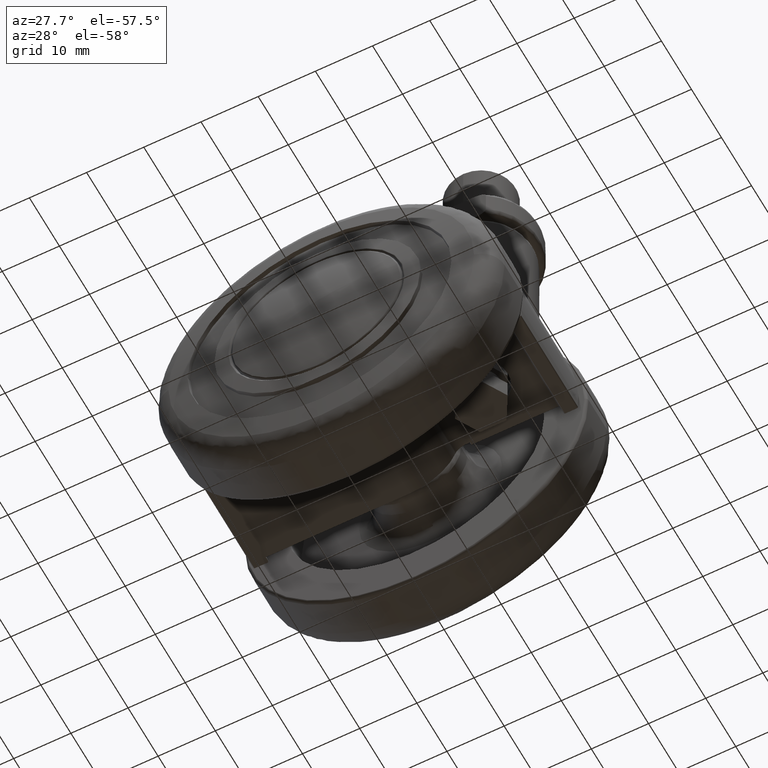
[diagram: clean part render]
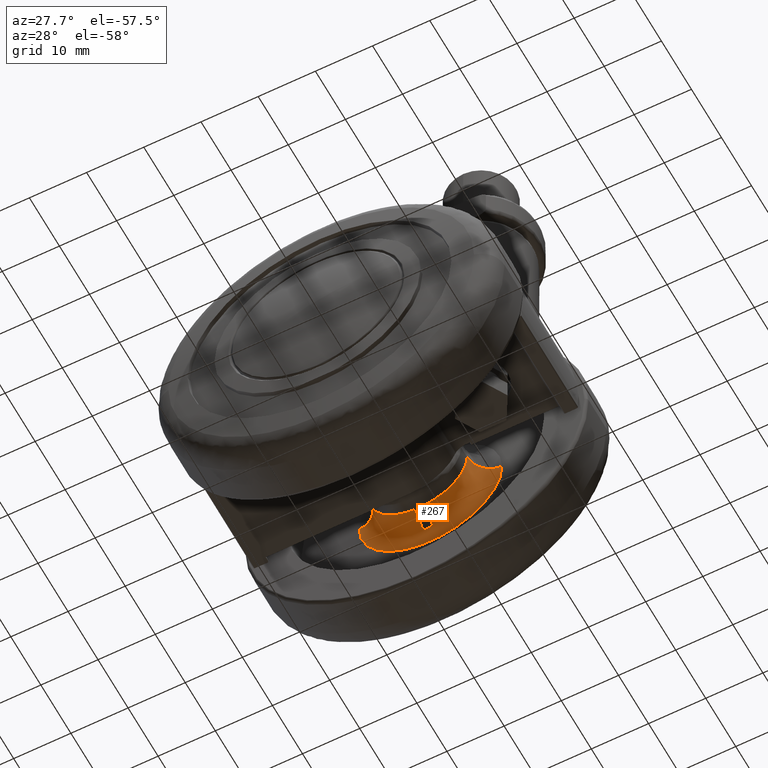
[diagram: same view with one face highlighted and labeled with its STEP entity id]
A machine part, auxiliary view. The second image highlights one B-rep face of the part: STEP entity #267.
In plain terms, the highlighted face is a freeform B-spline surface patch.
Its self-contained STEP definition (entity closure, byte-faithful):
#267=ADVANCED_FACE('',(#1412),#1411,.F.);
#1411=( BOUNDED_SURFACE() B_SPLINE_SURFACE( 2,2,((#4099,#4100,#4101,#4102,#4103),(#4104,#4105,#4106,#4107,#4108),(#4109,#4110,#4111,#4112,#4113),(#4114,#4115,#4116,#4117,#4118),(#4119,#4120,#4121,#4122,#4123)), .UNSPECIFIED.,.F.,.F.,.F.) B_SPLINE_SURFACE_WITH_KNOTS((3,2,3),(3,2,3),(1.57079632680E+00,2.09441127550E+00,3.14164117290E+00),(0.00000000000E+00,1.57079632679E+00,3.14159265359E+00), .UNSPECIFIED. ) GEOMETRIC_REPRESENTATION_ITEM() RATIONAL_B_SPLINE_SURFACE(((9.33008658559E-01,6.59736749373E-01,9.33008658559E-01,6.59736749373E-01,9.33008658559E-01),(9.33008658559E-01,6.59736749373E-01,9.33008658559E-01,6.59736749373E-01,9.33008658559E-01),(1.00000000000E+00,7.07106781187E-01,1.00000000000E+00,7.07106781187E-01,1.00000000000E+00),(8.66017317119E-01,6.12366717560E-01,8.66017317119E-01,6.12366717560E-01,8.66017317119E-01),(1.00000000000E+00,7.07106781187E-01,1.00000000000E+00,7.07106781187E-01,1.00000000000E+00))) REPRESENTATION_ITEM('') SURFACE() );
#1412=FACE_OUTER_BOUND('',#4124,.T.);
#4099=CARTESIAN_POINT('',(-1.25000000000E+01,1.53075794228E-15,7.00000000000E+00));
#4100=CARTESIAN_POINT('',(-1.25000000000E+01,1.25000000000E+01,7.00000000000E+00));
#4101=CARTESIAN_POINT('',(1.53075794228E-15,1.25000000000E+01,7.00000000000E+00));
#4102=CARTESIAN_POINT('',(1.25000000000E+01,1.25000000000E+01,7.00000000000E+00));
#4103=CARTESIAN_POINT('',(1.25000000000E+01,-1.53075794228E-15,7.00000000000E+00));
#4104=CARTESIAN_POINT('',(-1.14281685616E+01,1.39950078331E-15,7.00000000000E+00));
#4105=CARTESIAN_POINT('',(-1.14281685616E+01,1.14281685616E+01,7.00000000000E+00));
#4106=CARTESIAN_POINT('',(1.39950078331E-15,1.14281685616E+01,7.00000000000E+00));
#4107=CARTESIAN_POINT('',(1.14281685616E+01,1.14281685616E+01,7.00000000000E+00));
#4108=CARTESIAN_POINT('',(1.14281685616E+01,-1.39950078331E-15,7.00000000000E+00));
#4109=CARTESIAN_POINT('',(-1.04999439750E+01,1.28582981065E-15,6.46406926847E+00));
#4110=CARTESIAN_POINT('',(-1.04999439750E+01,1.04999439750E+01,6.46406926847E+00));
#4111=CARTESIAN_POINT('',(1.28582981065E-15,1.04999439750E+01,6.46406926847E+00));
#4112=CARTESIAN_POINT('',(1.04999439750E+01,1.04999439750E+01,6.46406926847E+00));
#4113=CARTESIAN_POINT('',(1.04999439750E+01,-1.28582981065E-15,6.46406926847E+00));
#4114=CARTESIAN_POINT('',(-8.49988794996E+00,1.04090167903E-15,5.30929325415E+00));
#4115=CARTESIAN_POINT('',(-8.49988794996E+00,8.49988794996E+00,5.30929325415E+00));
#4116=CARTESIAN_POINT('',(1.04090167903E-15,8.49988794996E+00,5.30929325415E+00));
#4117=CARTESIAN_POINT('',(8.49988794996E+00,8.49988794996E+00,5.30929325415E+00));
#4118=CARTESIAN_POINT('',(8.49988794996E+00,-1.04090167903E-15,5.30929325415E+00));
#4119=CARTESIAN_POINT('',(-8.50000000471E+00,1.04091540133E-15,2.99980592274E+00));
#4120=CARTESIAN_POINT('',(-8.50000000471E+00,8.50000000471E+00,2.99980592274E+00));
#4121=CARTESIAN_POINT('',(1.04091540133E-15,8.50000000471E+00,2.99980592274E+00));
#4122=CARTESIAN_POINT('',(8.50000000471E+00,8.50000000471E+00,2.99980592274E+00));
#4123=CARTESIAN_POINT('',(8.50000000471E+00,-1.04091540133E-15,2.99980592274E+00));
#4124=EDGE_LOOP('',(#5021,#5022,#5023,#5024,#5025,#5026,#5027,#5028));
#5021=ORIENTED_EDGE('',*,*,#5468,.F.);
#5022=ORIENTED_EDGE('',*,*,#5453,.F.);
#5023=ORIENTED_EDGE('',*,*,#5450,.F.);
#5024=ORIENTED_EDGE('',*,*,#5452,.F.);
#5025=ORIENTED_EDGE('',*,*,#5467,.F.);
#5026=ORIENTED_EDGE('',*,*,#5492,.F.);
#5027=ORIENTED_EDGE('',*,*,#5431,.F.);
#5028=ORIENTED_EDGE('',*,*,#5493,.T.);
#5431=EDGE_CURVE('',#6988,#6989,#6990,.T.);
#5450=EDGE_CURVE('',#7114,#7115,#7122,.T.);
#5452=EDGE_CURVE('',#7134,#7114,#7135,.T.);
#5453=EDGE_CURVE('',#7115,#7141,#7142,.T.);
#5467=EDGE_CURVE('',#7224,#7134,#7231,.T.);
#5468=EDGE_CURVE('',#7141,#7237,#7238,.T.);
#5492=EDGE_CURVE('',#6989,#7224,#7386,.T.);
#5493=EDGE_CURVE('',#6988,#7237,#7392,.T.);
#6988=VERTEX_POINT('',#9211);
#6989=VERTEX_POINT('',#9212);
#6990=CIRCLE('',#9216,1.25000000000E+01);
#7114=VERTEX_POINT('',#9301);
#7115=VERTEX_POINT('',#9302);
#7122=CIRCLE('',#9316,1.00000000000E+01);
#7134=VERTEX_POINT('',#9321);
#7135=CIRCLE('',#9325,4.00000000000E+00);
#7141=VERTEX_POINT('',#9326);
#7142=CIRCLE('',#9330,4.00000000000E+00);
#7224=VERTEX_POINT('',#9375);
#7231=CIRCLE('',#9381,8.50000000000E+00);
#7237=VERTEX_POINT('',#9382);
#7238=CIRCLE('',#9386,8.50000000000E+00);
#7386=(BOUNDED_CURVE() B_SPLINE_CURVE(2,(#9462,#9463,#9464,#9465,#9466),.UNSPECIFIED.,.F.,.F.) B_SPLINE_CURVE_WITH_KNOTS((3,2,3),(1.57079632679E+00,2.09441127550E+00,3.14159037102E+00),.UNSPECIFIED.) CURVE() GEOMETRIC_REPRESENTATION_ITEM() RATIONAL_B_SPLINE_CURVE((9.33008658559E-01,9.33008658559E-01,1.00000000000E+00,8.66023816717E-01,9.99987001435E-01)) REPRESENTATION_ITEM('') );
#7392=(BOUNDED_CURVE() B_SPLINE_CURVE(2,(#9467,#9468,#9469,#9470,#9471),.UNSPECIFIED.,.F.,.F.) B_SPLINE_CURVE_WITH_KNOTS((3,2,3),(1.57079632679E+00,2.09441127550E+00,3.14164117290E+00),.UNSPECIFIED.) CURVE() GEOMETRIC_REPRESENTATION_ITEM() RATIONAL_B_SPLINE_CURVE((9.33008658559E-01,9.33008658559E-01,1.00000000000E+00,8.66017317119E-01,1.00000000000E+00)) REPRESENTATION_ITEM('') );
#9211=CARTESIAN_POINT('',(1.25000000000E+01,0.00000000000E+00,7.00000000000E+00));
#9212=CARTESIAN_POINT('',(-1.25000000000E+01,0.00000000000E+00,7.00000000000E+00));
#9213=CARTESIAN_POINT('',(0.00000000000E+00,0.00000000000E+00,7.00000000000E+00));
#9214=DIRECTION('',(0.00000000000E+00,0.00000000000E+00,1.00000000000E+00));
#9215=DIRECTION('',(1.00000000000E+00,-1.22460635382E-16,0.00000000000E+00));
#9216=AXIS2_PLACEMENT_3D('',#9213,#9214,#9215);
#9301=CARTESIAN_POINT('',(-9.06550555697E-01,9.95882352941E+00,6.12249899920E+00));
#9302=CARTESIAN_POINT('',(9.06550555697E-01,9.95882352941E+00,6.12249899920E+00));
#9313=CARTESIAN_POINT('',(0.00000000000E+00,0.00000000000E+00,6.12249899920E+00));
#9314=DIRECTION('',(-0.00000000000E+00,0.00000000000E+00,-1.00000000000E+00));
#9315=DIRECTION('',(1.00000000000E+00,-0.00000000000E+00,-0.00000000000E+00));
#9316=AXIS2_PLACEMENT_3D('',#9313,#9314,#9315);
#9321=CARTESIAN_POINT('',(-7.70567972342E-01,8.46500000000E+00,3.00000000000E+00));
#9322=CARTESIAN_POINT('',(-1.13318819462E+00,1.24485294118E+01,3.00000000000E+00));
#9323=DIRECTION('',(-9.95882352941E-01,-9.06550555697E-02,5.39868905299E-17));
#9324=DIRECTION('',(-9.06550555697E-02,9.95882352941E-01,-2.68673971959E-14));
#9325=AXIS2_PLACEMENT_3D('',#9322,#9323,#9324);
#9326=CARTESIAN_POINT('',(7.70567972342E-01,8.46500000000E+00,3.00000000000E+00));
#9327=CARTESIAN_POINT('',(1.13318819462E+00,1.24485294118E+01,3.00000000000E+00));
#9328=DIRECTION('',(9.95882352941E-01,-9.06550555697E-02,0.00000000000E+00));
#9329=DIRECTION('',(-0.00000000000E+00,-0.00000000000E+00,-1.00000000000E+00));
#9330=AXIS2_PLACEMENT_3D('',#9327,#9328,#9329);
#9375=CARTESIAN_POINT('',(-8.50000000000E+00,2.68219846214E-07,3.00000000000E+00));
#9378=CARTESIAN_POINT('',(0.00000000000E+00,0.00000000000E+00,3.00000000000E+00));
#9379=DIRECTION('',(0.00000000000E+00,0.00000000000E+00,-1.00000000000E+00));
#9380=DIRECTION('',(1.00000000000E+00,-1.22464679915E-16,-0.00000000000E+00));
#9381=AXIS2_PLACEMENT_3D('',#9378,#9379,#9380);
#9382=CARTESIAN_POINT('',(8.49999863885E+00,4.81035715597E-03,3.00000000000E+00));
#9383=CARTESIAN_POINT('',(0.00000000000E+00,0.00000000000E+00,3.00000000000E+00));
#9384=DIRECTION('',(0.00000000000E+00,0.00000000000E+00,-1.00000000000E+00));
#9385=DIRECTION('',(-9.06550555697E-02,-9.95882352941E-01,-0.00000000000E+00));
#9386=AXIS2_PLACEMENT_3D('',#9383,#9384,#9385);
#9462=CARTESIAN_POINT('',(-1.25000000000E+01,1.53075794228E-15,7.00000000000E+00));
#9463=CARTESIAN_POINT('',(-1.14281685616E+01,1.39950078331E-15,7.00000000000E+00));
#9464=CARTESIAN_POINT('',(-1.04999439750E+01,1.28582981065E-15,6.46406926847E+00));
#9465=CARTESIAN_POINT('',(-8.49999998404E+00,1.04091539879E-15,5.30935793947E+00));
#9466=CARTESIAN_POINT('',(-8.50000000000E+00,1.04091540075E-15,2.99999997236E+00));
#9467=CARTESIAN_POINT('',(1.25000000000E+01,-1.53075794228E-15,7.00000000000E+00));
#9468=CARTESIAN_POINT('',(1.14281685616E+01,-1.39950078331E-15,7.00000000000E+00));
#9469=CARTESIAN_POINT('',(1.04999439750E+01,-1.28582981065E-15,6.46406926847E+00));
#9470=CARTESIAN_POINT('',(8.49988794996E+00,-1.04090167903E-15,5.30929325415E+00));
#9471=CARTESIAN_POINT('',(8.50000000471E+00,-1.04091540133E-15,2.99980592274E+00));